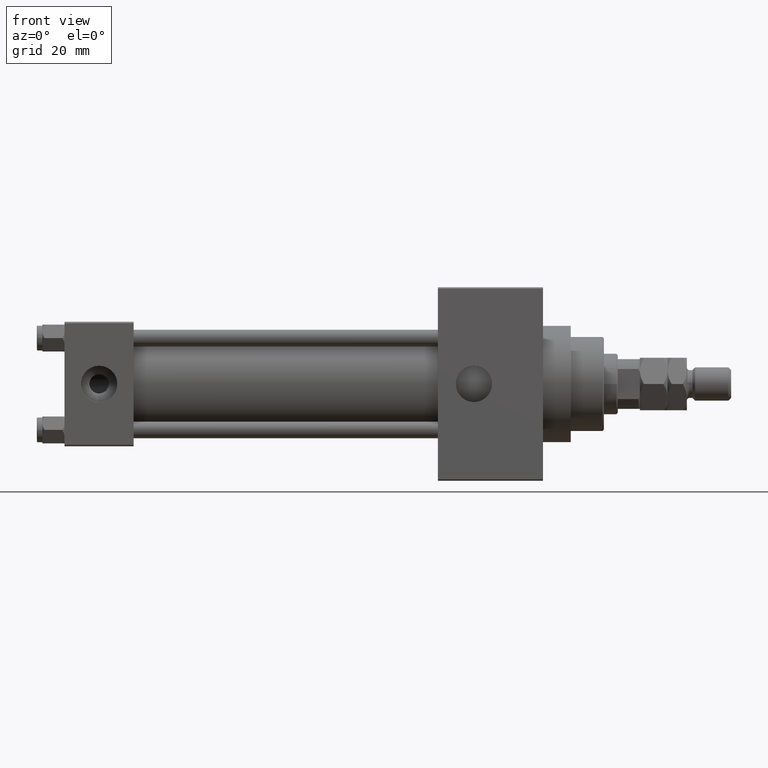
[diagram: clean part render]
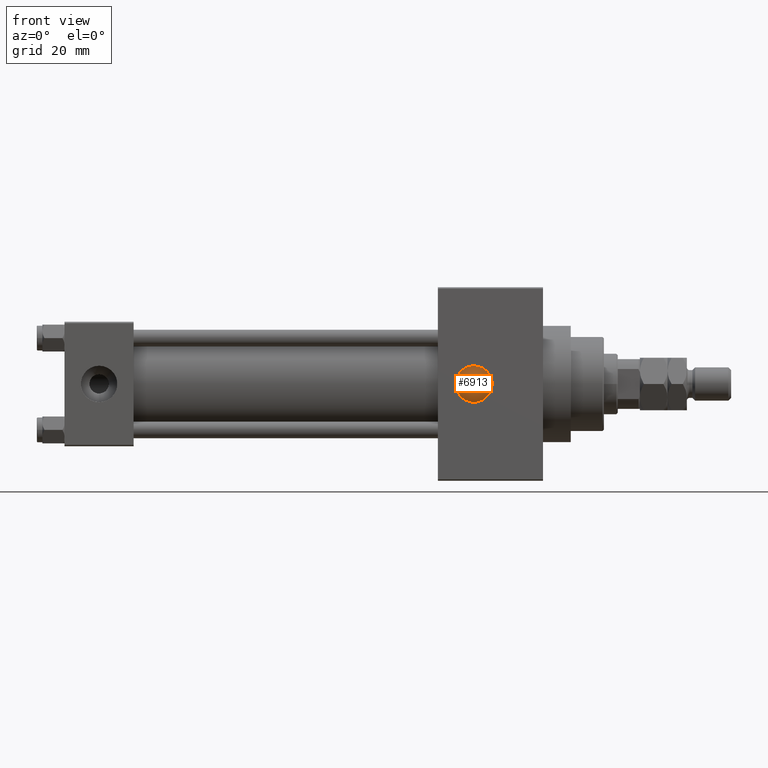
[diagram: same view with one face highlighted and labeled with its STEP entity id]
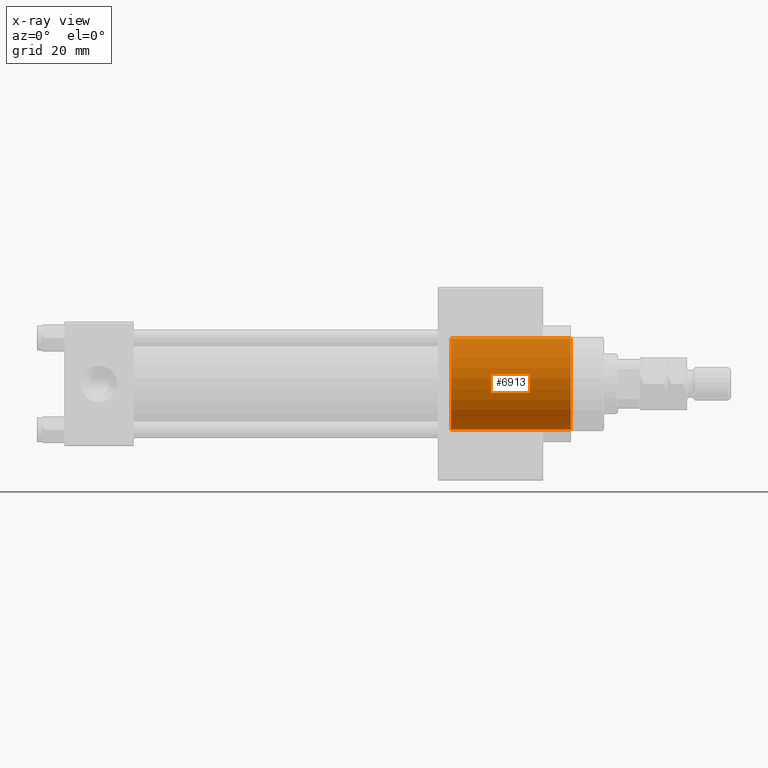
[diagram: x-ray of the same camera — body ghosted, the highlighted face saturated]
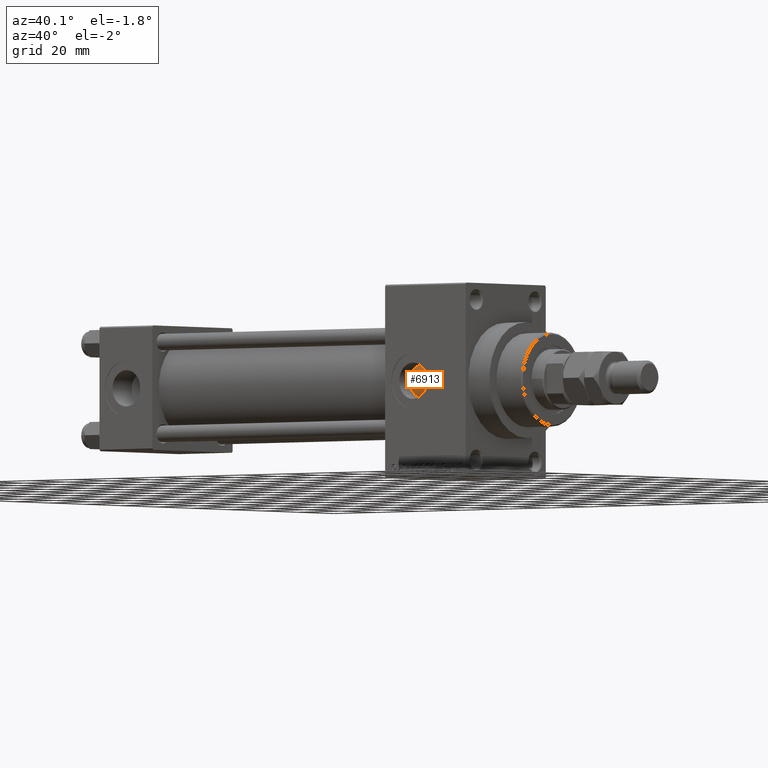
[diagram: same view with one face highlighted and labeled with its STEP entity id]
A machine part, front view. The second image highlights one B-rep face of the part: STEP entity #6913.
The next image is the same camera in x-ray: the body ghosted, the highlighted face saturated — about 0% of this face is hidden behind the body in this view.
A second angle (auxiliary view) of the same face is appended — the face is thin or edge-on in the first view.
In plain terms, the highlighted cylindrical surface (partial cylindrical patch) has radius 16.5 mm, axis along (-1, 0, 0).
Its self-contained STEP definition (entity closure, byte-faithful):
#216 = VERTEX_POINT ( 'NONE', #11681 ) ;
#410 = AXIS2_PLACEMENT_3D ( 'NONE', #26623, #4968, #38441 ) ;
#1945 = VECTOR ( 'NONE', #30557, 1000.000000000000000 ) ;
#2857 = CARTESIAN_POINT ( 'NONE',  ( 16.50000000000000000, 2.020667218593133100E-15, 43.25999999999999801 ) ) ;
#4488 = CARTESIAN_POINT ( 'NONE',  ( 16.50000000000000000, 2.020667218593133100E-15, 43.25999999999999801 ) ) ;
#4968 = DIRECTION ( 'NONE',  ( -0.000000000000000000, -0.000000000000000000, -1.000000000000000000 ) ) ;
#5336 = DIRECTION ( 'NONE',  ( 0.000000000000000000, 0.000000000000000000, 1.000000000000000000 ) ) ;
#6913 = ADVANCED_FACE ( 'NONE', ( #11359 ), #38188, .T. ) ;
#7941 = CARTESIAN_POINT ( 'NONE',  ( 0.000000000000000000, 0.000000000000000000, 0.000000000000000000 ) ) ;
#10036 = CIRCLE ( 'NONE', #19491, 16.50000000000000000 ) ;
#11359 = FACE_OUTER_BOUND ( 'NONE', #31206, .T. ) ;
#11681 = CARTESIAN_POINT ( 'NONE',  ( 16.50000000000000000, 2.020667218593133100E-15, 0.000000000000000000 ) ) ;
#13916 = EDGE_CURVE ( 'NONE', #45142, #28194, #16278, .T. ) ;
#14626 = CARTESIAN_POINT ( 'NONE',  ( -16.50000000000000000, 0.000000000000000000, 43.25999999999999801 ) ) ;
#16196 = ORIENTED_EDGE ( 'NONE', *, *, #44701, .F. ) ;
#16278 = LINE ( 'NONE', #14626, #26518 ) ;
#19491 = AXIS2_PLACEMENT_3D ( 'NONE', #31168, #5336, #38794 ) ;
#19735 = LINE ( 'NONE', #4488, #1945 ) ;
#20166 = CARTESIAN_POINT ( 'NONE',  ( -16.50000000000000000, 0.000000000000000000, 43.25999999999999801 ) ) ;
#22082 = EDGE_CURVE ( 'NONE', #216, #28194, #29147, .T. ) ;
#25487 = CARTESIAN_POINT ( 'NONE',  ( -16.50000000000000000, 0.000000000000000000, 0.000000000000000000 ) ) ;
#26429 = DIRECTION ( 'NONE',  ( -0.000000000000000000, -0.000000000000000000, -1.000000000000000000 ) ) ;
#26518 = VECTOR ( 'NONE', #26429, 1000.000000000000000 ) ;
#26563 = ORIENTED_EDGE ( 'NONE', *, *, #13916, .F. ) ;
#26623 = CARTESIAN_POINT ( 'NONE',  ( 0.000000000000000000, 0.000000000000000000, 43.25999999999999801 ) ) ;
#27131 = DIRECTION ( 'NONE',  ( 1.000000000000000000, 0.000000000000000000, 0.000000000000000000 ) ) ;
#28194 = VERTEX_POINT ( 'NONE', #25487 ) ;
#28203 = VERTEX_POINT ( 'NONE', #2857 ) ;
#29147 = CIRCLE ( 'NONE', #35418, 16.50000000000000000 ) ;
#30557 = DIRECTION ( 'NONE',  ( -0.000000000000000000, -0.000000000000000000, -1.000000000000000000 ) ) ;
#31168 = CARTESIAN_POINT ( 'NONE',  ( 0.000000000000000000, 0.000000000000000000, 43.25999999999999801 ) ) ;
#31206 = EDGE_LOOP ( 'NONE', ( #16196, #40699, #37982, #26563 ) ) ;
#34140 = EDGE_CURVE ( 'NONE', #28203, #216, #19735, .T. ) ;
#35418 = AXIS2_PLACEMENT_3D ( 'NONE', #7941, #41901, #27131 ) ;
#37982 = ORIENTED_EDGE ( 'NONE', *, *, #22082, .T. ) ;
#38188 = CYLINDRICAL_SURFACE ( 'NONE', #410, 16.50000000000000000 ) ;
#38441 = DIRECTION ( 'NONE',  ( -1.000000000000000000, 0.000000000000000000, 0.000000000000000000 ) ) ;
#38794 = DIRECTION ( 'NONE',  ( 1.000000000000000000, 0.000000000000000000, 0.000000000000000000 ) ) ;
#40699 = ORIENTED_EDGE ( 'NONE', *, *, #34140, .T. ) ;
#41901 = DIRECTION ( 'NONE',  ( 0.000000000000000000, 0.000000000000000000, 1.000000000000000000 ) ) ;
#44701 = EDGE_CURVE ( 'NONE', #28203, #45142, #10036, .T. ) ;
#45142 = VERTEX_POINT ( 'NONE', #20166 ) ;